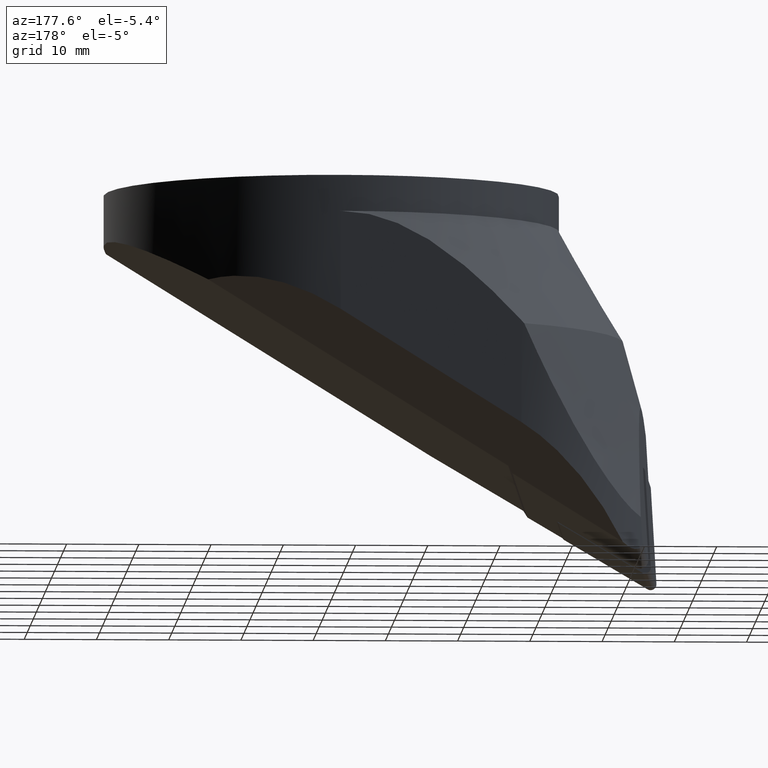
[diagram: clean part render]
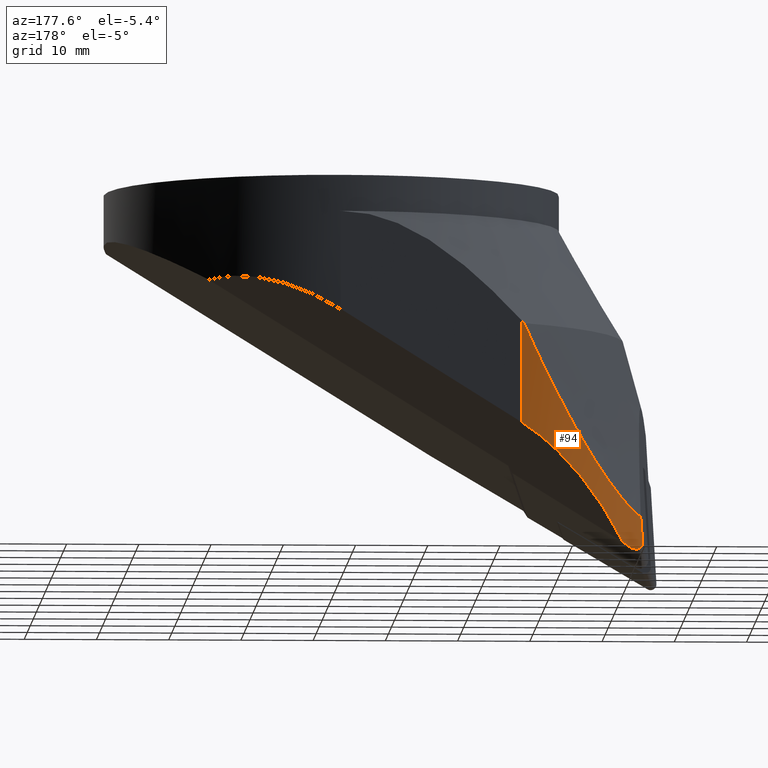
[diagram: same view with one face highlighted and labeled with its STEP entity id]
A machine part, auxiliary view. The second image highlights one B-rep face of the part: STEP entity #94.
In plain terms, the highlighted cylindrical surface (partial cylindrical patch) has radius 20 mm, axis along (-0, -0, -1).
Its self-contained STEP definition (entity closure, byte-faithful):
#94=ADVANCED_FACE('',(#144),#145,.T.);
#144=FACE_OUTER_BOUND('',#204,.T.);
#145=CYLINDRICAL_SURFACE('',#205,20.0);
#204=EDGE_LOOP('',(#389,#390,#391,#392,#393,#394,#395));
#205=AXIS2_PLACEMENT_3D('',#396,#397,#398);
#389=ORIENTED_EDGE('',*,*,#526,.T.);
#390=ORIENTED_EDGE('',*,*,#528,.T.);
#391=ORIENTED_EDGE('',*,*,#514,.F.);
#392=ORIENTED_EDGE('',*,*,#536,.T.);
#393=ORIENTED_EDGE('',*,*,#537,.T.);
#394=ORIENTED_EDGE('',*,*,#538,.T.);
#395=ORIENTED_EDGE('',*,*,#533,.F.);
#396=CARTESIAN_POINT('',(-25.0,11.5,-45.1525124915259));
#397=DIRECTION('',(-0.0,-0.0,-1.0));
#398=DIRECTION('',(-0.868594311794106,-0.495523885921681,0.0));
#514=EDGE_CURVE('',#619,#621,#622,.T.);
#526=EDGE_CURVE('',#642,#640,#643,.T.);
#528=EDGE_CURVE('',#640,#621,#645,.T.);
#533=EDGE_CURVE('',#642,#653,#654,.T.);
#536=EDGE_CURVE('',#619,#658,#659,.T.);
#537=EDGE_CURVE('',#658,#660,#661,.T.);
#538=EDGE_CURVE('',#660,#653,#662,.T.);
#619=VERTEX_POINT('',#783);
#621=VERTEX_POINT('',#794);
#622=ELLIPSE('',#795,307.853930925469,20.0);
#640=VERTEX_POINT('',#821);
#642=VERTEX_POINT('',#824);
#643=ELLIPSE('',#825,23.5530156373904,20.0);
#645=B_SPLINE_CURVE_WITH_KNOTS('',3,(#828,#829,#830,#831,#832,#833,#834,#835,#836,#837,#838,#839,#840,#841,#842,#843,#844,#845,#846),.UNSPECIFIED.,.F.,.F.,(4,2,2,2,2,2,2,3,4),(0.695827527968727,0.720900766031859,0.806938027363849,0.903839828823694,1.00074163028354,1.05440544975957,1.07120875637511,1.08801206299066,1.09586113475074),.UNSPECIFIED.);
#653=VERTEX_POINT('',#856);
#654=ELLIPSE('',#857,33.3522018098426,20.0);
#658=VERTEX_POINT('',#862);
#659=B_SPLINE_CURVE_WITH_KNOTS('',3,(#863,#864,#865,#866,#867,#868,#869,#870,#871,#872,#873,#874,#875,#876,#877,#878,#879,#880),.UNSPECIFIED.,.F.,.F.,(4,2,2,2,2,2,2,2,4),(38.3138694451474,40.7595341317712,43.3085488348472,45.8575635379232,49.0407442770876,52.223925016252,58.5902864945808,64.9566479729097,70.2415142547178),.UNSPECIFIED.);
#660=VERTEX_POINT('',#881);
#661=CIRCLE('',#882,37.2773708419751);
#662=LINE('',#883,#884);
#783=CARTESIAN_POINT('',(-41.9113209362336,22.1774165504448,-46.5061679022293));
#794=CARTESIAN_POINT('',(-42.1886761678148,21.7249406647665,-50.0155171444417));
#795=AXIS2_PLACEMENT_3D('',#989,#990,#991);
#821=CARTESIAN_POINT('',(-40.0205369082484,24.7054333888725,-50.7532801664135));
#824=CARTESIAN_POINT('',(-39.2912630221238,25.4914188427221,-50.2637255363895));
#825=AXIS2_PLACEMENT_3D('',#1007,#1008,#1009);
#828=CARTESIAN_POINT('',(-40.0205369082484,24.7054333888725,-50.7532801664135));
#829=CARTESIAN_POINT('',(-40.0741532391518,24.6444474254812,-50.7894240892566));
#830=CARTESIAN_POINT('',(-40.1289622844351,24.5813502682369,-50.8220626875127));
#831=CARTESIAN_POINT('',(-40.3741109968347,24.2953812171623,-50.9516066946737));
#832=CARTESIAN_POINT('',(-40.5697202671192,24.0564825947233,-51.0110341504353));
#833=CARTESIAN_POINT('',(-40.9438713087527,23.578753241251,-51.0713490973521));
#834=CARTESIAN_POINT('',(-41.1552359136951,23.2952550670107,-51.0701686718232));
#835=CARTESIAN_POINT('',(-41.5535190023096,22.7294566976291,-50.9828654434802));
#836=CARTESIAN_POINT('',(-41.7407112895066,22.4468369678713,-50.9000952981774));
#837=CARTESIAN_POINT('',(-41.9825989132575,22.0649087408146,-50.6821270327854));
#838=CARTESIAN_POINT('',(-42.0765458931336,21.9116835392828,-50.5647690721702));
#839=CARTESIAN_POINT('',(-42.1494365967041,21.7906734069011,-50.3771071347797));
#840=CARTESIAN_POINT('',(-42.1653701798702,21.7640390536902,-50.3241519232469));
#841=CARTESIAN_POINT('',(-42.1866445758954,21.7283761826763,-50.2112518002379));
#842=CARTESIAN_POINT('',(-42.1918683797102,21.7195724771011,-50.1512139877941));
#843=CARTESIAN_POINT('',(-42.1918683797102,21.7195724771011,-50.0952029657423));
#844=CARTESIAN_POINT('',(-42.1918683797102,21.7195724771011,-50.0690393932086));
#845=CARTESIAN_POINT('',(-42.1908086443125,21.7213558568775,-50.0423289086101));
#846=CARTESIAN_POINT('',(-42.1886761678148,21.7249406647665,-50.0155171444417));
#856=CARTESIAN_POINT('',(-25.0,31.5,-34.2483641382788));
#857=AXIS2_PLACEMENT_3D('',#1019,#1020,#1021);
#862=CARTESIAN_POINT('',(-25.3789691750259,31.49640923677,-20.4999999999999));
#863=CARTESIAN_POINT('',(-41.9113209362336,22.1774165504448,-46.5061679022293));
#864=CARTESIAN_POINT('',(-41.4838002682667,22.8545409455364,-46.2778333098568));
#865=CARTESIAN_POINT('',(-41.0239213064258,23.4916992929283,-45.9492387676157));
#866=CARTESIAN_POINT('',(-40.056952709037,24.6872657704716,-45.1242272667074));
#867=CARTESIAN_POINT('',(-39.5477838232793,25.2427051941291,-44.6207983125217));
#868=CARTESIAN_POINT('',(-38.5409583710406,26.2357526633645,-43.5234426753881));
#869=CARTESIAN_POINT('',(-38.0433205145051,26.6736085606994,-42.9297231423156));
#870=CARTESIAN_POINT('',(-36.9843903113743,27.5295384319069,-41.5892206448132));
#871=CARTESIAN_POINT('',(-36.3994488598279,27.9477803075389,-40.7933169705184));
#872=CARTESIAN_POINT('',(-35.2377878041528,28.6949007620027,-39.121946452625));
#873=CARTESIAN_POINT('',(-34.6611150598481,29.0235127366852,-38.2463278793116));
#874=CARTESIAN_POINT('',(-32.9487211574239,29.8972933682142,-35.5269339710418));
#875=CARTESIAN_POINT('',(-31.8309328181163,30.3308611858167,-33.5911852703641));
#876=CARTESIAN_POINT('',(-29.6783065551614,30.9775896971119,-29.6051098108423));
#877=CARTESIAN_POINT('',(-28.6444148066493,31.1896788663797,-27.555643079653));
#878=CARTESIAN_POINT('',(-26.8625087524193,31.4297815926997,-23.8241896125123));
#879=CARTESIAN_POINT('',(-26.0957408290955,31.4828250797742,-22.1389233121775));
#880=CARTESIAN_POINT('',(-25.3789691750259,31.49640923677,-20.4999999999999));
#881=CARTESIAN_POINT('',(-25.0,31.5,-20.0949040821064));
#882=AXIS2_PLACEMENT_3D('',#1026,#1027,#1028);
#883=CARTESIAN_POINT('',(-25.0,31.5,-20.0949040821064));
#884=VECTOR('',#1029,14.1534600561724);
#989=CARTESIAN_POINT('',(-25.0000000000001,11.5000000000001,228.994640923988));
#990=DIRECTION('',(-0.992405994765367,0.104449876194448,0.064965875017012));
#991=DIRECTION('',(-0.064609011250945,0.006800042786725,-0.997887486184326));
#1007=CARTESIAN_POINT('',(-25.0,11.5,-42.0643360285826));
#1008=DIRECTION('',(-0.526616764544048,-0.0402762685221401,0.849148164630349));
#1009=DIRECTION('',(-0.846675516030688,-0.0647547376587956,-0.528154706979791));
#1019=CARTESIAN_POINT('',(-25.0,11.5,-57.8319322055207));
#1020=DIRECTION('',(0.374709505220685,0.707106781186548,-0.59966055956455));
#1021=DIRECTION('',(-0.280783826400162,-0.529861519200397,-0.80025446784303));
#1026=CARTESIAN_POINT('',(-38.3256675865551,-1.04062610186439,-7.72006617765554));
#1027=DIRECTION('',(0.639624088379536,-0.487841125077176,-0.594047188570136));
#1028=DIRECTION('',(0.347307176421116,0.872836109514381,-0.342833561855009));
#1029=DIRECTION('',(0.0,0.0,-1.0));